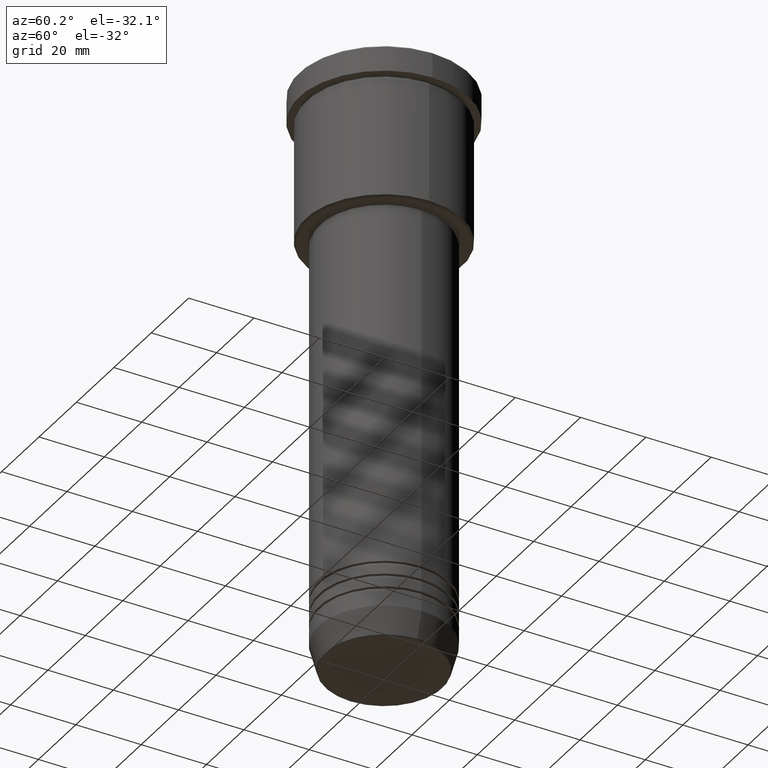
[diagram: clean part render]
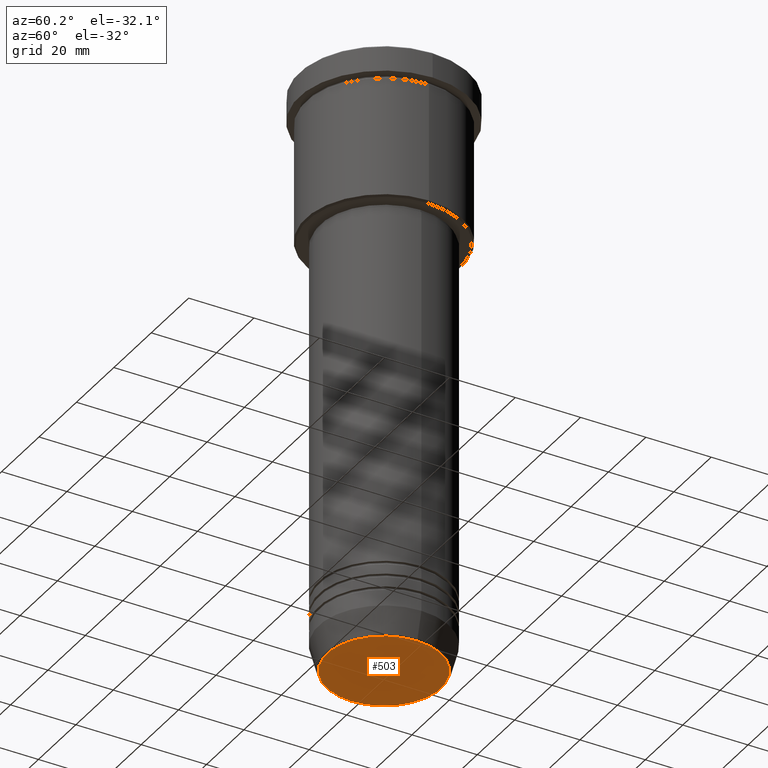
[diagram: same view with one face highlighted and labeled with its STEP entity id]
A machine part, auxiliary view. The second image highlights one B-rep face of the part: STEP entity #503.
In plain terms, the highlighted planar face has unit normal (0, -0, 1).
Its self-contained STEP definition (entity closure, byte-faithful):
#41 = EDGE_CURVE ( 'NONE', #957, #135, #485, .T. ) ;
#44 = DIRECTION ( 'NONE',  ( 1.000000000000000000, 0.000000000000000000, 0.000000000000000000 ) ) ;
#55 = CARTESIAN_POINT ( 'NONE',  ( 0.000000000000000000, 0.000000000000000000, -180.0000000000000000 ) ) ;
#59 = PLANE ( 'NONE',  #1120 ) ;
#128 = FACE_OUTER_BOUND ( 'NONE', #672, .T. ) ;
#135 = VERTEX_POINT ( 'NONE', #733 ) ;
#205 = DIRECTION ( 'NONE',  ( 0.000000000000000000, 0.000000000000000000, -1.000000000000000000 ) ) ;
#316 = ORIENTED_EDGE ( 'NONE', *, *, #449, .T. ) ;
#378 = CARTESIAN_POINT ( 'NONE',  ( 0.000000000000000000, 0.000000000000000000, -180.0000000000000000 ) ) ;
#449 = EDGE_CURVE ( 'NONE', #135, #957, #1014, .T. ) ;
#482 = ORIENTED_EDGE ( 'NONE', *, *, #41, .T. ) ;
#485 = CIRCLE ( 'NONE', #949, 17.47274296656154036 ) ;
#503 = ADVANCED_FACE ( 'NONE', ( #128 ), #59, .F. ) ;
#581 = DIRECTION ( 'NONE',  ( 1.000000000000000000, 0.000000000000000000, 0.000000000000000000 ) ) ;
#603 = DIRECTION ( 'NONE',  ( 0.000000000000000000, -0.000000000000000000, 1.000000000000000000 ) ) ;
#672 = EDGE_LOOP ( 'NONE', ( #316, #482 ) ) ;
#713 = DIRECTION ( 'NONE',  ( 0.000000000000000000, 0.000000000000000000, -1.000000000000000000 ) ) ;
#733 = CARTESIAN_POINT ( 'NONE',  ( 17.47274296656154036, 0.000000000000000000, -180.0000000000000000 ) ) ;
#778 = DIRECTION ( 'NONE',  ( 1.000000000000000000, 0.000000000000000000, 0.000000000000000000 ) ) ;
#949 = AXIS2_PLACEMENT_3D ( 'NONE', #378, #205, #778 ) ;
#957 = VERTEX_POINT ( 'NONE', #1161 ) ;
#1014 = CIRCLE ( 'NONE', #1119, 17.47274296656154036 ) ;
#1119 = AXIS2_PLACEMENT_3D ( 'NONE', #1143, #713, #44 ) ;
#1120 = AXIS2_PLACEMENT_3D ( 'NONE', #55, #603, #581 ) ;
#1143 = CARTESIAN_POINT ( 'NONE',  ( 0.000000000000000000, 0.000000000000000000, -180.0000000000000000 ) ) ;
#1161 = CARTESIAN_POINT ( 'NONE',  ( -17.47274296656154036, 2.169366823916868503E-15, -180.0000000000000000 ) ) ;